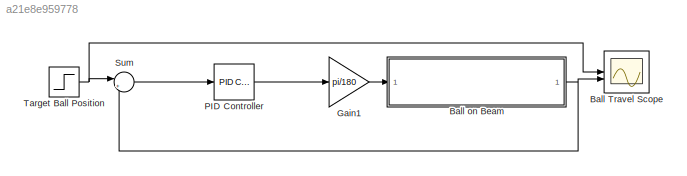
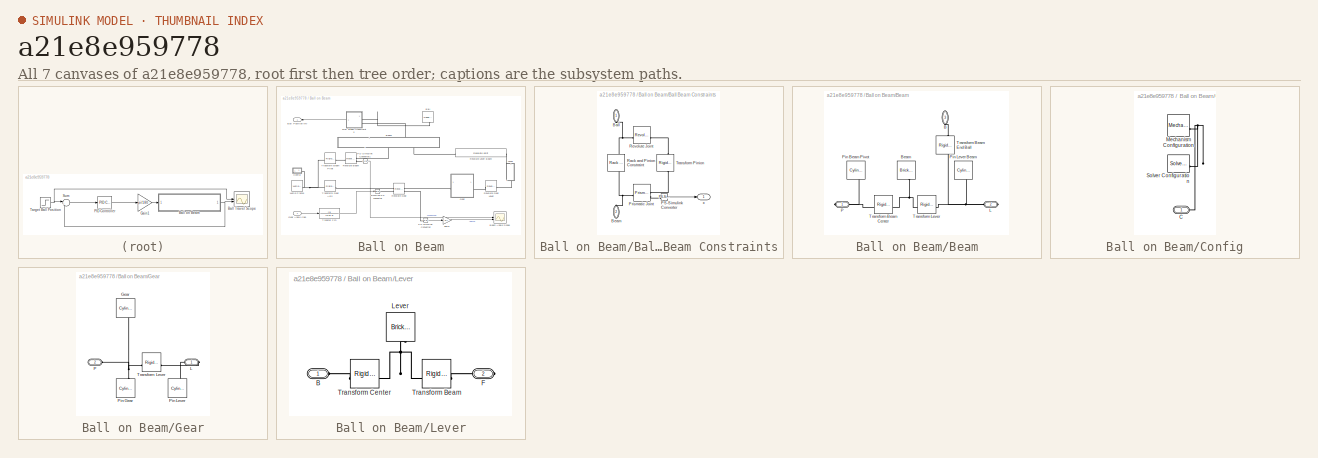
[diagram: thumbnail index - all 7 canvases of the model, root first then tree order]
MODEL slx_a21e8e959778
KIND model
CONFIG AbsTol = auto
CONFIG EnableMultiTasking = on
CONFIG FixedStep = auto
CONFIG MaxStep = auto
CONFIG MinStep = auto
CONFIG PostLoadFcn = m = 0.11;\nR = 0.015;\ng = -9.8;\nL = 1.0;\nd = 0.03;\nJ = 9.99e-6;
CONFIG RelTol = 1e-3
CONFIG SampleTimeConstraint = Unconstrained
CONFIG SolverName = ode23t
CONFIG StartTime = 0.0
CONFIG StopTime = 1000
WORKSPACE source: external: MATLAB File  (data not in archive)
BLOCK [Scope] Ball Travel Scope
  Floating = off
  NumInputPorts = 2
  ScopeSpecificationString = Simulink.scopes.TimeScopeBlockCfg('CurrentConfiguration', extmgr.ConfigurationSet(extmgr.Configuration('Core','General UI',true),extmgr.Configuration('Core','Source UI',true),extmgr.Configuration('Sources','WiredSimulink',true,'DataLoggingSaveFormat','StructureWithTime','DataLoggingDecimation','1','DataLoggingDecimateData',true),extmgr.Configuration('Visuals','Time Domain',true,'SerializedDisplays...<+1718ch>
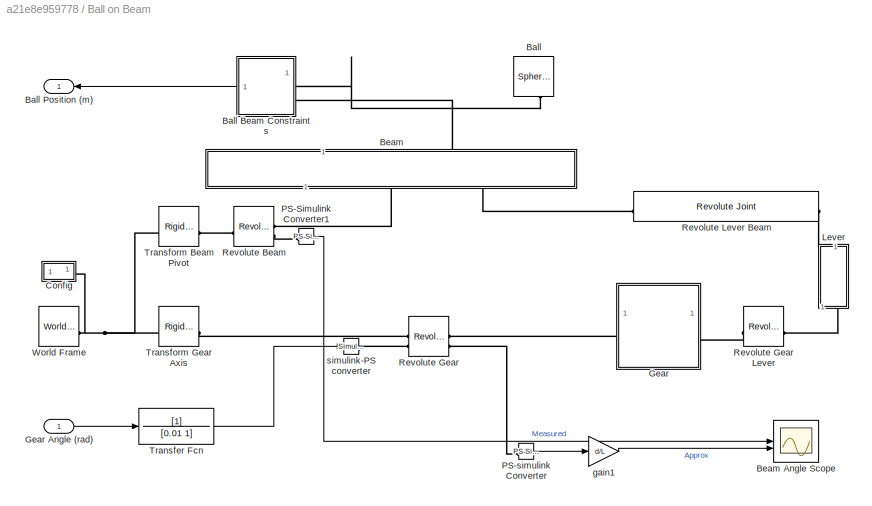
BLOCK [SubSystem] Ball on Beam
BLOCK [Reference] Ball on Beam/Ball  REF=sm_lib/Body Elements/Spherical Solid
  NameLocation = right
  SourceBlock = sm_lib/Body Elements/Spherical Solid
  SourceType = Spherical Solid
BLOCK [SubSystem] Ball on Beam/Ball Beam Constraints
BLOCK [PMIOPort] Ball on Beam/Ball Beam Constraints/Ball
  NameLocation = right
  Side = Left
BLOCK [PMIOPort] Ball on Beam/Ball Beam Constraints/Beam
  NameLocation = left
  Port = 2
  Side = Left
BLOCK [Reference] Ball on Beam/Ball Beam Constraints/PS-Simulink Converter  REF=nesl_utility/PS-Simulink
Converter
  SourceBlock = nesl_utility/PS-Simulink\nConverter
  SourceType = PS-Simulink\nConverter
BLOCK [Reference] Ball on Beam/Ball Beam Constraints/Prismatic Joint  REF=sm_lib/Joints/Prismatic
Joint
  SourceBlock = sm_lib/Joints/Prismatic\nJoint
  SourceType = Prismatic\nJoint
BLOCK [Reference] Ball on Beam/Ball Beam Constraints/Rack and Pinion Constraint  REF=sm_lib/Gears and
Couplings/Gears/Rack and Pinion
Constraint
  NameLocation = left
  SourceBlock = sm_lib/Gears and\nCouplings/Gears/Rack and Pinion\nConstraint
  SourceType = Rack and Pinion\nConstraint
BLOCK [Reference] Ball on Beam/Ball Beam Constraints/Revolute Joint  REF=sm_lib/Joints/Revolute Joint
  SourceBlock = sm_lib/Joints/Revolute Joint
  SourceType = Revolute Joint
BLOCK [Reference] Ball on Beam/Ball Beam Constraints/Transform Pinion  REF=sm_lib/Frames and
Transforms/Rigid
Transform
  NameLocation = right
  SourceBlock = sm_lib/Frames and\nTransforms/Rigid\nTransform
  SourceType = Rigid\nTransform
BLOCK [Outport] Ball on Beam/Ball Beam Constraints/x
  VectorParamsAs1DForOutWhenUnconnected = off
BLOCK [Outport] Ball on Beam/Ball Position (m)
  VectorParamsAs1DForOutWhenUnconnected = off
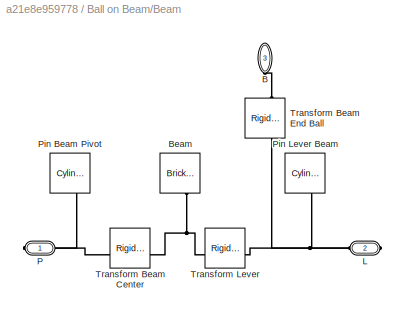
BLOCK [SubSystem] Ball on Beam/Beam
  NameLocation = left
BLOCK [Scope] Ball on Beam/Beam Angle Scope
  Floating = off
  NumInputPorts = 2
  ScopeSpecificationString = Simulink.scopes.TimeScopeBlockCfg('CurrentConfiguration', extmgr.ConfigurationSet(extmgr.Configuration('Core','General UI',true),extmgr.Configuration('Core','Source UI',true),extmgr.Configuration('Sources','WiredSimulink',true,'DataLoggingSaveFormat','StructureWithTime','DataLoggingDecimation','1','DataLoggingDecimateData',true,'DataLoggingVariableName','ScopeData1'),extmgr.Configuration('Visuals'...<+1710ch>
BLOCK [PMIOPort] Ball on Beam/Beam/B
  NameLocation = right
  Port = 3
  Side = Left
BLOCK [Reference] Ball on Beam/Beam/Beam  REF=sm_lib/Body Elements/Brick Solid
  NameLocation = right
  SourceBlock = sm_lib/Body Elements/Brick Solid
  SourceType = Brick Solid
BLOCK [PMIOPort] Ball on Beam/Beam/L
  Port = 2
  Side = Right
BLOCK [PMIOPort] Ball on Beam/Beam/P
  Side = Right
BLOCK [Reference] Ball on Beam/Beam/Pin Beam Pivot  REF=sm_lib/Body Elements/Cylindrical Solid
  NameLocation = left
  SourceBlock = sm_lib/Body Elements/Cylindrical Solid
  SourceType = Cylindrical Solid
BLOCK [Reference] Ball on Beam/Beam/Pin Lever Beam  REF=sm_lib/Body Elements/Cylindrical Solid
  NameLocation = right
  SourceBlock = sm_lib/Body Elements/Cylindrical Solid
  SourceType = Cylindrical Solid
BLOCK [Reference] Ball on Beam/Beam/Transform Beam Center  REF=sm_lib/Frames and
Transforms/Rigid
Transform
  SourceBlock = sm_lib/Frames and\nTransforms/Rigid\nTransform
  SourceType = Rigid\nTransform
BLOCK [Reference] Ball on Beam/Beam/Transform Beam End Ball  REF=sm_lib/Frames and
Transforms/Rigid
Transform
  NameLocation = left
  SourceBlock = sm_lib/Frames and\nTransforms/Rigid\nTransform
  SourceType = Rigid\nTransform
BLOCK [Reference] Ball on Beam/Beam/Transform Lever  REF=sm_lib/Frames and
Transforms/Rigid
Transform
  SourceBlock = sm_lib/Frames and\nTransforms/Rigid\nTransform
  SourceType = Rigid\nTransform
BLOCK [SubSystem] Ball on Beam/Config
BLOCK [PMIOPort] Ball on Beam/Config/C
  Side = Left
BLOCK [Reference] Ball on Beam/Config/Mechanism Configuration  REF=sm_lib/Utilities/Mechanism
Configuration
  SourceBlock = sm_lib/Utilities/Mechanism\nConfiguration
  SourceType = Mechanism\nConfiguration
BLOCK [Reference] Ball on Beam/Config/Solver Configuration  REF=nesl_utility/Solver
Configuration
  SourceBlock = nesl_utility/Solver\nConfiguration
  SourceType = Solver\nConfiguration
BLOCK [SubSystem] Ball on Beam/Gear
BLOCK [Inport] Ball on Beam/Gear Angle (rad)
BLOCK [Reference] Ball on Beam/Gear/Gear  REF=sm_lib/Body Elements/Cylindrical Solid
  NameLocation = left
  SourceBlock = sm_lib/Body Elements/Cylindrical Solid
  SourceType = Cylindrical Solid
BLOCK [PMIOPort] Ball on Beam/Gear/L
  Side = Right
BLOCK [PMIOPort] Ball on Beam/Gear/P
  Port = 2
  Side = Left
BLOCK [Reference] Ball on Beam/Gear/Pin Gear  REF=sm_lib/Body Elements/Cylindrical Solid
  NameLocation = left
  SourceBlock = sm_lib/Body Elements/Cylindrical Solid
  SourceType = Cylindrical Solid
BLOCK [Reference] Ball on Beam/Gear/Pin Lever  REF=sm_lib/Body Elements/Cylindrical Solid
  NameLocation = right
  SourceBlock = sm_lib/Body Elements/Cylindrical Solid
  SourceType = Cylindrical Solid
BLOCK [Reference] Ball on Beam/Gear/Transform Lever  REF=sm_lib/Frames and
Transforms/Rigid
Transform
  SourceBlock = sm_lib/Frames and\nTransforms/Rigid\nTransform
  SourceType = Rigid\nTransform
BLOCK [SubSystem] Ball on Beam/Lever
  NameLocation = right
BLOCK [PMIOPort] Ball on Beam/Lever/B
  Side = Left
BLOCK [PMIOPort] Ball on Beam/Lever/F
  Port = 2
  Side = Right
BLOCK [Reference] Ball on Beam/Lever/Lever  REF=sm_lib/Body Elements/Brick Solid
  NameLocation = right
  SourceBlock = sm_lib/Body Elements/Brick Solid
  SourceType = Brick Solid
BLOCK [Reference] Ball on Beam/Lever/Transform Beam  REF=sm_lib/Frames and
Transforms/Rigid
Transform
  SourceBlock = sm_lib/Frames and\nTransforms/Rigid\nTransform
  SourceType = Rigid\nTransform
BLOCK [Reference] Ball on Beam/Lever/Transform Center  REF=sm_lib/Frames and
Transforms/Rigid
Transform
  SourceBlock = sm_lib/Frames and\nTransforms/Rigid\nTransform
  SourceType = Rigid\nTransform
BLOCK [Reference] Ball on Beam/PS-Simulink Converter1  REF=nesl_utility/PS-Simulink
Converter
  SourceBlock = nesl_utility/PS-Simulink\nConverter
  SourceType = PS-Simulink\nConverter
BLOCK [Reference] Ball on Beam/PS-simulink Converter  REF=nesl_utility/PS-Simulink
Converter
  SourceBlock = nesl_utility/PS-Simulink\nConverter
  SourceType = PS-Simulink\nConverter
BLOCK [Reference] Ball on Beam/Revolute Beam  REF=sm_lib/Joints/Revolute Joint
  SourceBlock = sm_lib/Joints/Revolute Joint
  SourceType = Revolute Joint
BLOCK [Reference] Ball on Beam/Revolute Gear  REF=sm_lib/Joints/Revolute Joint
  SourceBlock = sm_lib/Joints/Revolute Joint
  SourceType = Revolute Joint
BLOCK [Reference] Ball on Beam/Revolute Gear Lever  REF=sm_lib/Joints/Revolute Joint
  SourceBlock = sm_lib/Joints/Revolute Joint
  SourceType = Revolute Joint
BLOCK [Reference] Ball on Beam/Revolute Lever Beam  REF=sm_lib/Joints/Revolute Joint
  SourceBlock = sm_lib/Joints/Revolute Joint
  SourceType = Revolute Joint
BLOCK [TransferFcn] Ball on Beam/Transfer Fcn
  Denominator = [0.01 1]
BLOCK [Reference] Ball on Beam/Transform Beam Pivot  REF=sm_lib/Frames and
Transforms/Rigid
Transform
  SourceBlock = sm_lib/Frames and\nTransforms/Rigid\nTransform
  SourceType = Rigid\nTransform
BLOCK [Reference] Ball on Beam/Transform Gear Axis  REF=sm_lib/Frames and
Transforms/Rigid
Transform
  SourceBlock = sm_lib/Frames and\nTransforms/Rigid\nTransform
  SourceType = Rigid\nTransform
BLOCK [Reference] Ball on Beam/World Frame  REF=sm_lib/Frames and
Transforms/World Frame
  SourceBlock = sm_lib/Frames and\nTransforms/World Frame
  SourceType = World Frame
BLOCK [Gain] Ball on Beam/gain1
  Gain = d/L
BLOCK [Reference] Ball on Beam/simulink-PS converter  REF=nesl_utility/Simulink-PS
Converter
  SourceBlock = nesl_utility/Simulink-PS\nConverter
  SourceType = Simulink-PS\nConverter
BLOCK [Gain] Gain1
  Gain = pi/180
BLOCK [Reference] PID Controller  REF=slpidlib/PID Controller
  LibrarySourceBlock = simulink/Continuous/PID Controller
  SourceBlock = slpidlib/PID Controller
  SourceType = PID 1dof
BLOCK [Sum] Sum
  Inputs = |+-
BLOCK [Step] Target Ball Position
  After = 0.3
  SampleTime = 0
  Time = 0
LINE Ball on Beam/Ball Beam Constraints/PS-Simulink Converter:1 -> Ball on Beam/Ball Beam Constraints/x:1
LINE Ball on Beam/Ball Beam Constraints:1 -> Ball on Beam/Ball Position (m):1
LINE Ball on Beam/Gear Angle (rad):1 -> Ball on Beam/Transfer Fcn:1
LINE Ball on Beam/PS-Simulink Converter1:1 -> Ball on Beam/Beam Angle Scope:1
LINE Ball on Beam/PS-simulink Converter:1 -> Ball on Beam/gain1:1
LINE Ball on Beam/Transfer Fcn:1 -> Ball on Beam/simulink-PS converter:1
LINE Ball on Beam/gain1:1 -> Ball on Beam/Beam Angle Scope:2
NET Ball on Beam:1 -> Ball Travel Scope:2, Sum:2
LINE Gain1:1 -> Ball on Beam:1
LINE PID Controller:1 -> Gain1:1
LINE Sum:1 -> PID Controller:1
NET Target Ball Position:1 -> Ball Travel Scope:1, Sum:1
PNET net1: Ball on Beam/Ball Beam Constraints/Ball:RConn1 -- Ball on Beam/Ball Beam Constraints/Rack and Pinion Constraint:LConn1 -- Ball on Beam/Ball Beam Constraints/Revolute Joint:RConn1
PNET net2: Ball on Beam/Ball Beam Constraints/Beam:RConn1 -- Ball on Beam/Ball Beam Constraints/Prismatic Joint:LConn1 -- Ball on Beam/Ball Beam Constraints/Rack and Pinion Constraint:RConn1
PLINE Ball on Beam/Ball Beam Constraints/PS-Simulink Converter:LConn1 -- Ball on Beam/Ball Beam Constraints/Prismatic Joint:RConn2
PLINE Ball on Beam/Ball Beam Constraints/Prismatic Joint:RConn1 -- Ball on Beam/Ball Beam Constraints/Transform Pinion:LConn1
PLINE Ball on Beam/Ball Beam Constraints/Revolute Joint:LConn1 -- Ball on Beam/Ball Beam Constraints/Transform Pinion:RConn1
PLINE Ball on Beam/Ball Beam Constraints:LConn1 -- Ball on Beam/Ball:RConn1
PLINE Ball on Beam/Ball Beam Constraints:LConn2 -- Ball on Beam/Beam:LConn1
PLINE Ball on Beam/Beam/B:RConn1 -- Ball on Beam/Beam/Transform Beam End Ball:RConn1
PNET net3: Ball on Beam/Beam/Beam:RConn1 -- Ball on Beam/Beam/Transform Beam Center:LConn1 -- Ball on Beam/Beam/Transform Lever:RConn1
PNET net4: Ball on Beam/Beam/L:RConn1 -- Ball on Beam/Beam/Pin Lever Beam:RConn1 -- Ball on Beam/Beam/Transform Beam End Ball:LConn1 -- Ball on Beam/Beam/Transform Lever:LConn1
PNET net5: Ball on Beam/Beam/P:RConn1 -- Ball on Beam/Beam/Pin Beam Pivot:RConn1 -- Ball on Beam/Beam/Transform Beam Center:RConn1
PLINE Ball on Beam/Beam:RConn1 -- Ball on Beam/Revolute Beam:RConn1
PLINE Ball on Beam/Beam:RConn2 -- Ball on Beam/Revolute Lever Beam:RConn1
PNET net6: Ball on Beam/Config/C:RConn1 -- Ball on Beam/Config/Mechanism Configuration:RConn1 -- Ball on Beam/Config/Solver Configuration:RConn1
PNET net7: Ball on Beam/Config:LConn1 -- Ball on Beam/Transform Beam Pivot:LConn1 -- Ball on Beam/Transform Gear Axis:LConn1 -- Ball on Beam/World Frame:RConn1
PNET net8: Ball on Beam/Gear/Gear:RConn1 -- Ball on Beam/Gear/P:RConn1 -- Ball on Beam/Gear/Pin Gear:RConn1 -- Ball on Beam/Gear/Transform Lever:LConn1
PNET net9: Ball on Beam/Gear/L:RConn1 -- Ball on Beam/Gear/Pin Lever:RConn1 -- Ball on Beam/Gear/Transform Lever:RConn1
PLINE Ball on Beam/Gear:LConn1 -- Ball on Beam/Revolute Gear:RConn1
PLINE Ball on Beam/Gear:RConn1 -- Ball on Beam/Revolute Gear Lever:LConn1
PLINE Ball on Beam/Lever/B:RConn1 -- Ball on Beam/Lever/Transform Center:LConn1
PLINE Ball on Beam/Lever/F:RConn1 -- Ball on Beam/Lever/Transform Beam:RConn1
PNET net10: Ball on Beam/Lever/Lever:RConn1 -- Ball on Beam/Lever/Transform Beam:LConn1 -- Ball on Beam/Lever/Transform Center:RConn1
PLINE Ball on Beam/Lever:LConn1 -- Ball on Beam/Revolute Gear Lever:RConn1
PLINE Ball on Beam/Lever:RConn1 -- Ball on Beam/Revolute Lever Beam:LConn1
PLINE Ball on Beam/PS-Simulink Converter1:LConn1 -- Ball on Beam/Revolute Beam:RConn2
PLINE Ball on Beam/PS-simulink Converter:LConn1 -- Ball on Beam/Revolute Gear:RConn2
PLINE Ball on Beam/Revolute Beam:LConn1 -- Ball on Beam/Transform Beam Pivot:RConn1
PLINE Ball on Beam/Revolute Gear:LConn1 -- Ball on Beam/Transform Gear Axis:RConn1
PLINE Ball on Beam/Revolute Gear:LConn2 -- Ball on Beam/simulink-PS converter:RConn1
note: NET lines group one-source signal fan-out (src -> all destinations, sorted); 1:1 wires keep LINE; PNET lines group multi-terminal physical nets as a canonical sorted terminal list (undirected conserving connections); 2-terminal nets keep the pairwise PLINE form
